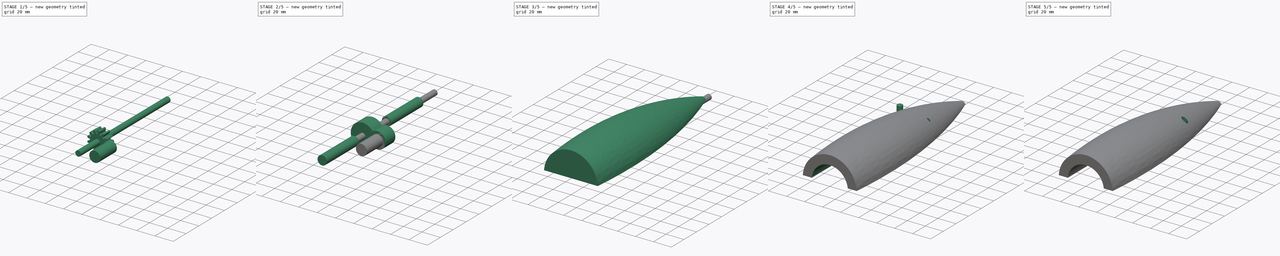
[diagram: build sequence overview — one tinted view per stage of 5, left to right]
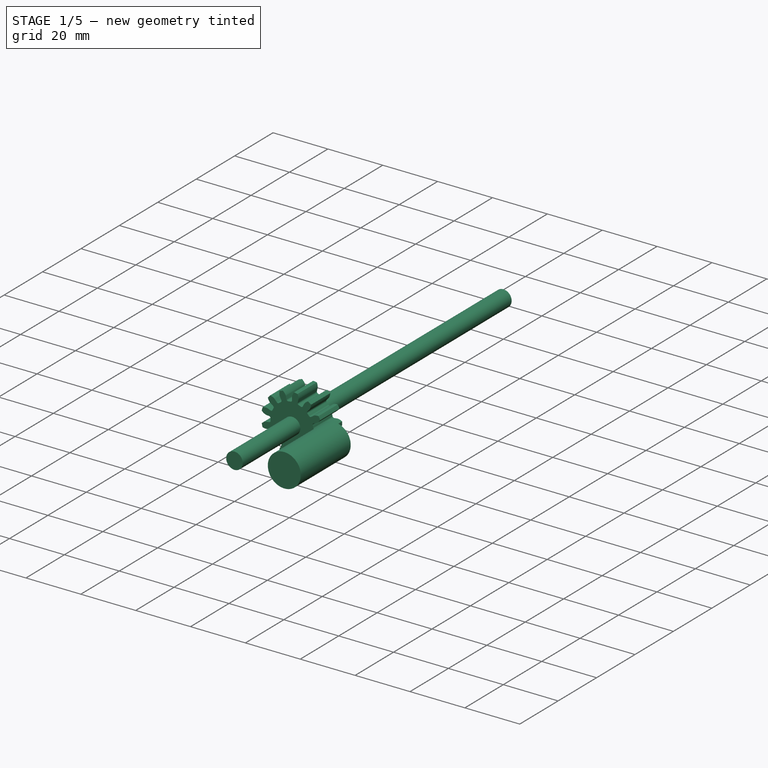
[diagram: stage 1 of 5 — iso view after this stage's code; geometry added in this stage tinted green]
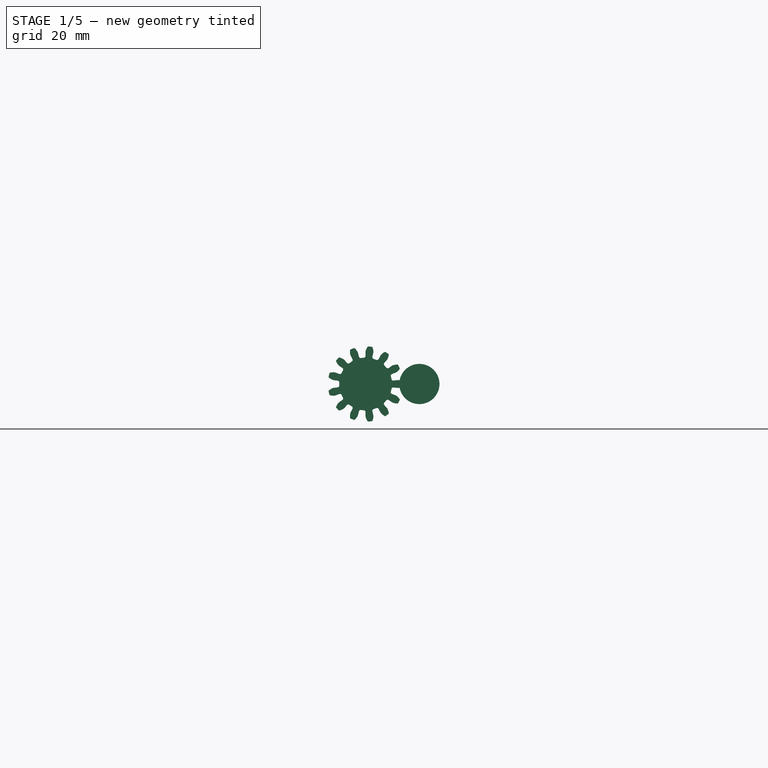
[diagram: stage 1 of 5 — front view after this stage's code; geometry added in this stage tinted green]
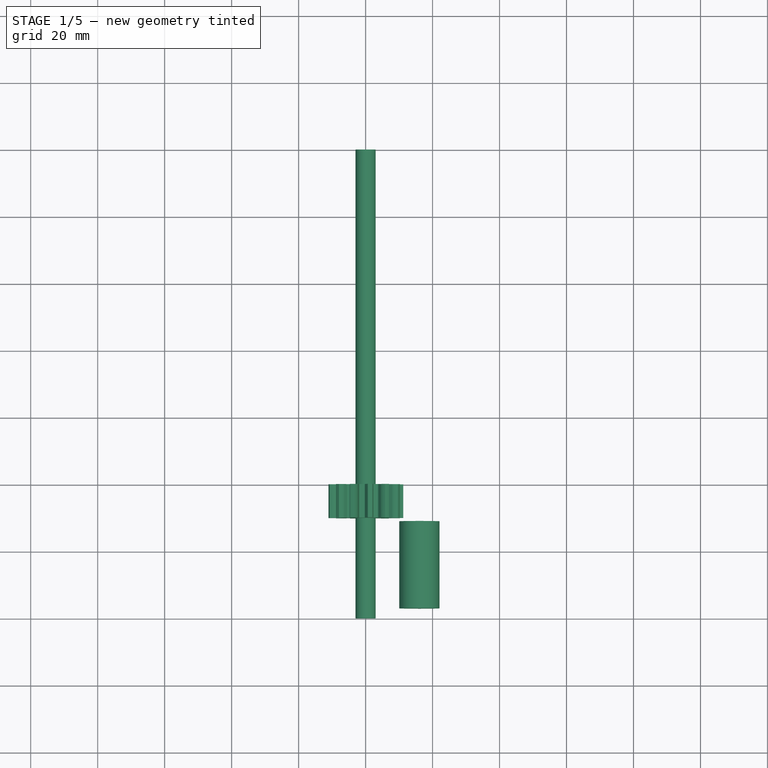
[diagram: stage 1 of 5 — top view after this stage's code; geometry added in this stage tinted green]
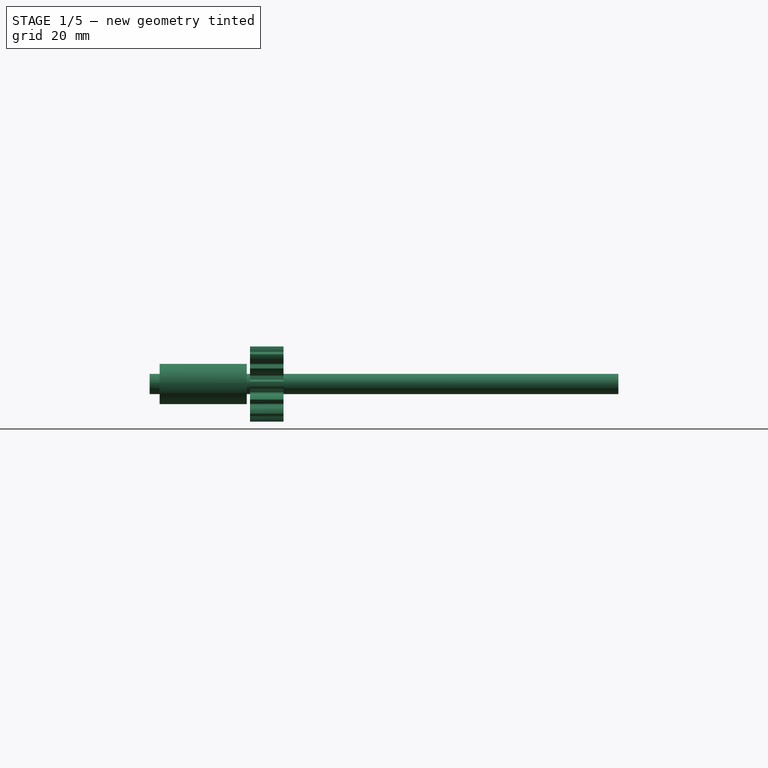
[diagram: stage 1 of 5 — right view after this stage's code; geometry added in this stage tinted green]
FCSTD DOCUMENT  (FreeCAD 0.16R6705 (Git))
Label: solo_tappo
License: All rights reserved
LicenseURL: http://it.wikipedia.org/wiki/<copyright redacted>
objects: Sketcher::SketchObject×13, PartDesign::Pad×10, Part::Cut×6, Part::MultiCommon×3, Part::MultiFuse×2, Part::Fuse×2, PartDesign::Mirrored×2, Part::Loft×1, Part::Part2DObjectPython×1, Part::Box×1, PartDesign::Pocket×1
note: 53 computed .brp shape members not serialized (recipe doc carries the construction recipe); baked Part::Feature solids carry a one-line shape summary decoded from their .brp

FEATURE [Part::Part2DObjectPython] InvoluteGear  # Draft 2D object (typed FeaturePython)
  ExternalGear = true
  HighPrecision = true
  Modules = 1.5
  NumberOfTeeth = 13
  PressureAngle = 10
FEATURE [PartDesign::Pad] Pad
  Length = 10
  Length2 = 100
  Sketch = -> InvoluteGear
  Type = 0
FEATURE [Sketcher::SketchObject] Sketch006
  Placement = pos=(0,0,0) rot=(1,0,0;3.14159rad)
  sketch-geometry (1):
    g0: Circle CenterX=0 CenterY=0 CenterZ=0 NormalX=0 NormalY=0 NormalZ=1 Radius=3.00999
FEATURE [PartDesign::Pad] Pad002
  Length = 200
  Length2 = 200
  Midplane = true
  Placement = pos=(0,0,0) rot=(1,0,0;3.14159rad)
  Sketch = -> Sketch006
  Type = 0
FEATURE [Part::MultiFuse] Fusion  label="ingranaggio"
  Placement = pos=(0,0,0) rot=(1,0,0;1.5708rad)
  Shapes = -> [Pad002,Pad]
FEATURE [Sketcher::SketchObject] Sketch013
  Placement = pos=(0,-11,0) rot=(1,0,0;1.5708rad)
  sketch-geometry (1):
    g0: Circle CenterX=16.0596 CenterY=9e-06 CenterZ=0 NormalX=0 NormalY=0 NormalZ=1 Radius=6
  constraints (1):
    c: Radius(g0) = 6
FEATURE [PartDesign::Pad] Pad008  label="scasso_motore"
  Length = 26
  Length2 = 100
  Placement = pos=(0,-11,0) rot=(1,0,0;1.5708rad)
  Sketch = -> Sketch013
  Type = 0
FEATURE [Sketcher::SketchObject] Sketch014
  Placement = pos=(0,-40,0) rot=(1,0,0;1.5708rad)
  sketch-geometry (1):
    g0: Circle CenterX=0 CenterY=0 CenterZ=0 NormalX=0 NormalY=0 NormalZ=1 Radius=20.0437
FEATURE [PartDesign::Pad] Pad009  label="buco"
  Length = 100
  Length2 = 100
  Placement = pos=(0,-40,0) rot=(1,0,0;1.5708rad)
  Sketch = -> Sketch014
  Type = 0
FEATURE [Part::Cut] Cut005  label="ingranaggio_senza_buco"
  Base = -> Fusion
  Tool = -> Pad009
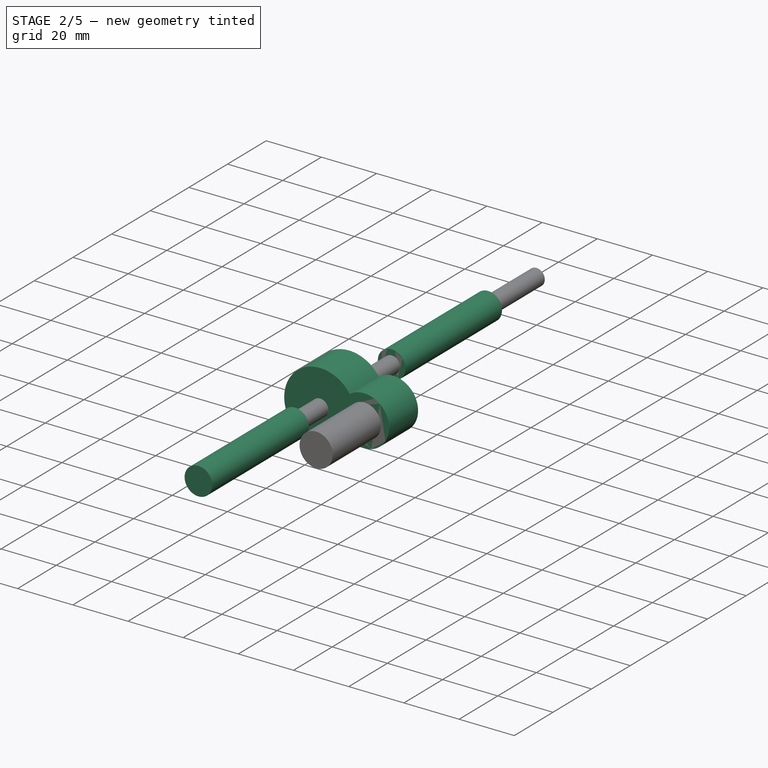
[diagram: stage 2 of 5 — iso view after this stage's code; geometry added in this stage tinted green]
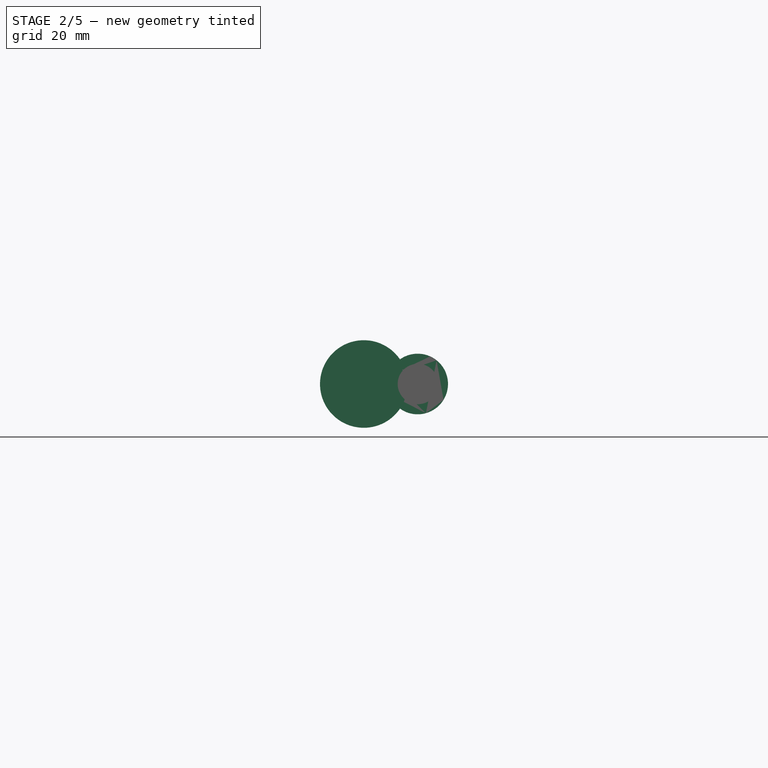
[diagram: stage 2 of 5 — front view after this stage's code; geometry added in this stage tinted green]
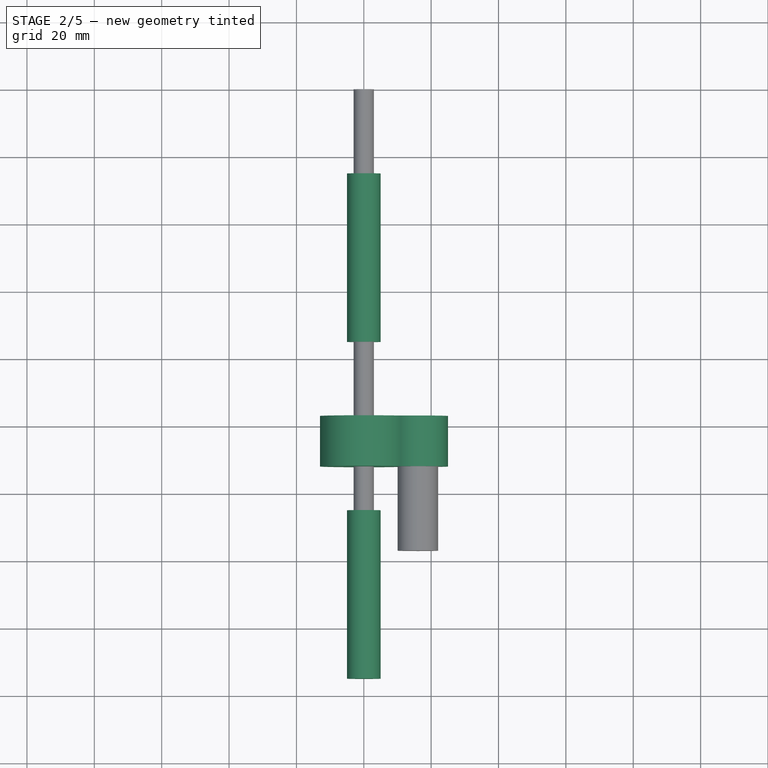
[diagram: stage 2 of 5 — top view after this stage's code; geometry added in this stage tinted green]
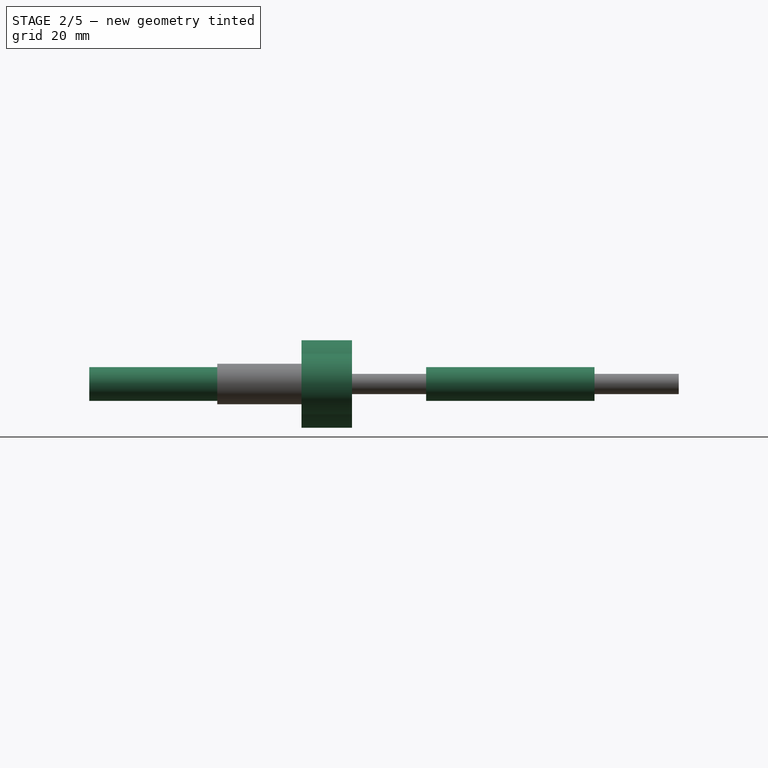
[diagram: stage 2 of 5 — right view after this stage's code; geometry added in this stage tinted green]
FEATURE [Sketcher::SketchObject] Sketch008
  Placement = pos=(0,3,0) rot=(1,0,0;1.5708rad)
  sketch-geometry (1):
    g0: Circle CenterX=0 CenterY=0 CenterZ=0 NormalX=0 NormalY=0 NormalZ=1 Radius=13
  constraints (1):
    c: Radius(g0) = 13
FEATURE [PartDesign::Pad] Pad004  label="scasso_ruota_dentata"
  Length = 15
  Length2 = 100
  Placement = pos=(0,3,0) rot=(1,0,0;1.5708rad)
  Sketch = -> Sketch008
  Type = 0
FEATURE [Sketcher::SketchObject] Sketch009
  Placement = pos=(0,3,0) rot=(1,0,0;1.5708rad)
  sketch-geometry (1):
    g0: Circle CenterX=15.9971 CenterY=9e-06 CenterZ=0 NormalX=0 NormalY=0 NormalZ=1 Radius=9
  constraints (1):
    c: Radius(g0) = 9
FEATURE [PartDesign::Pad] Pad005  label="scasso_ruota_dentata_motore"
  Length = 15
  Length2 = 100
  Placement = pos=(0,3,0) rot=(1,0,0;1.5708rad)
  Sketch = -> Sketch009
  Type = 0
FEATURE [Sketcher::SketchObject] Sketch010
  Placement = pos=(0,-25,0) rot=(1,0,0;1.5708rad)
  sketch-geometry (1):
    g0: Circle CenterX=0 CenterY=0 CenterZ=0 NormalX=0 NormalY=0 NormalZ=1 Radius=5
  constraints (1):
    c: Radius(g0) = 5
FEATURE [PartDesign::Pad] Pad006
  Length = 50
  Length2 = 100
  Placement = pos=(0,-25,0) rot=(1,0,0;1.5708rad)
  Sketch = -> Sketch010
  Type = 0
FEATURE [Sketcher::SketchObject] Sketch011
  Placement = pos=(0,75,0) rot=(1,0,0;1.5708rad)
  sketch-geometry (1):
    g0: Circle CenterX=0 CenterY=0 CenterZ=0 NormalX=0 NormalY=0 NormalZ=1 Radius=5
  constraints (1):
    c: Radius(g0) = 5
FEATURE [PartDesign::Pad] Pad007
  Length = 50
  Length2 = 100
  Placement = pos=(0,75,0) rot=(1,0,0;1.5708rad)
  Sketch = -> Sketch011
  Type = 0
FEATURE [Part::Fuse] Fusion002  label="scassi_perno"
  Base = -> Pad006
  Tool = -> Pad007
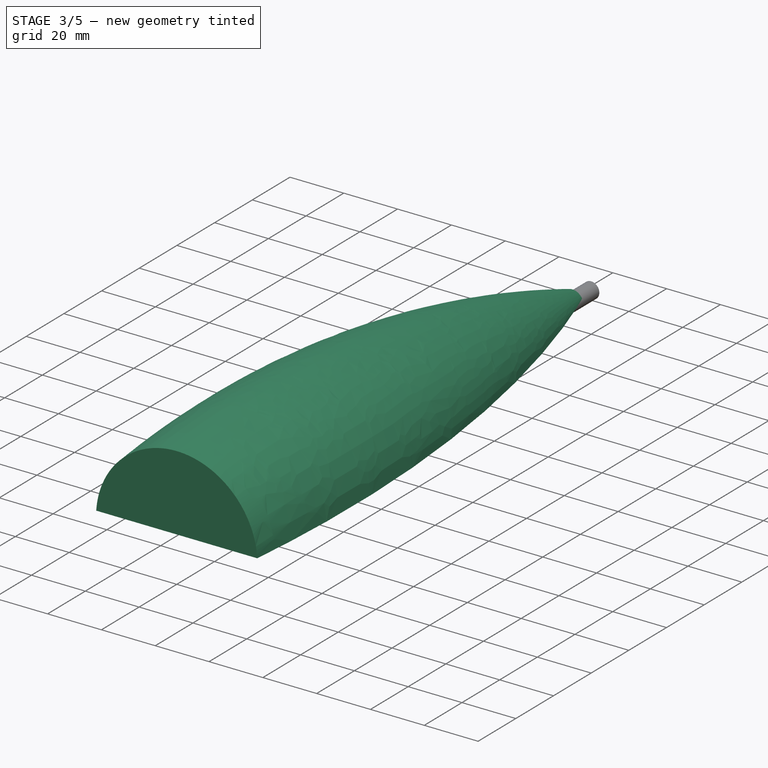
[diagram: stage 3 of 5 — iso view after this stage's code; geometry added in this stage tinted green]
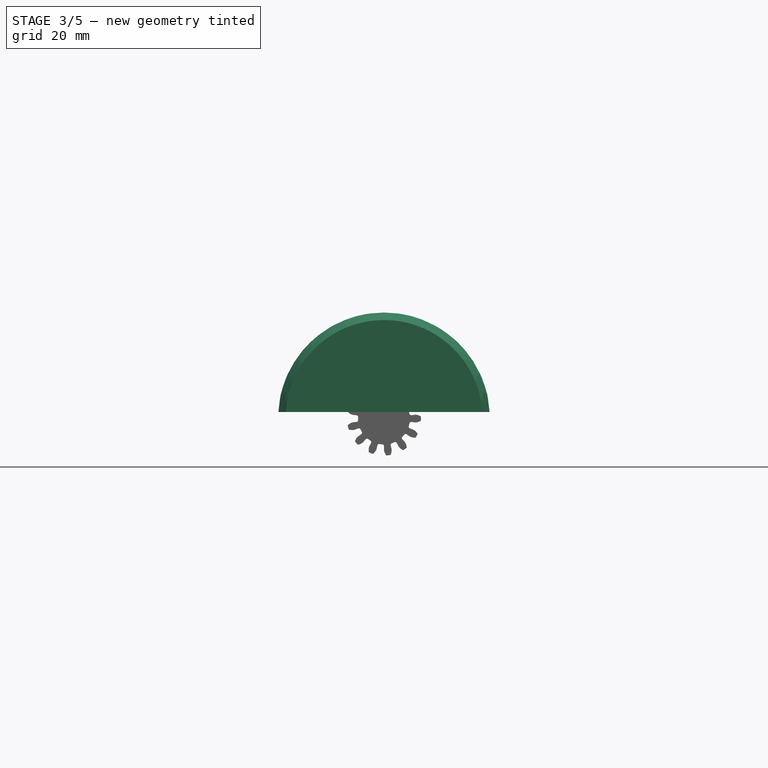
[diagram: stage 3 of 5 — front view after this stage's code; geometry added in this stage tinted green]
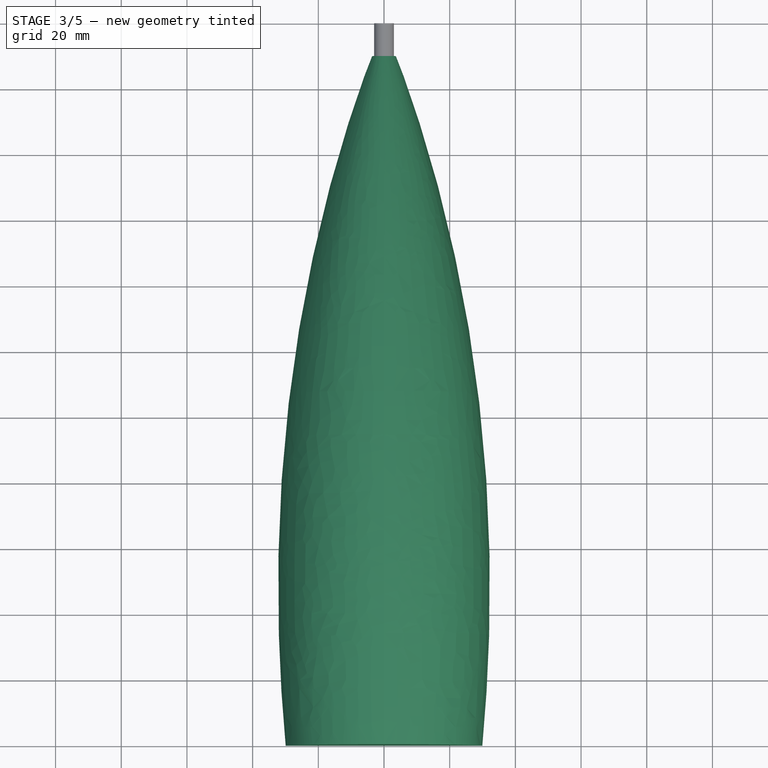
[diagram: stage 3 of 5 — top view after this stage's code; geometry added in this stage tinted green]
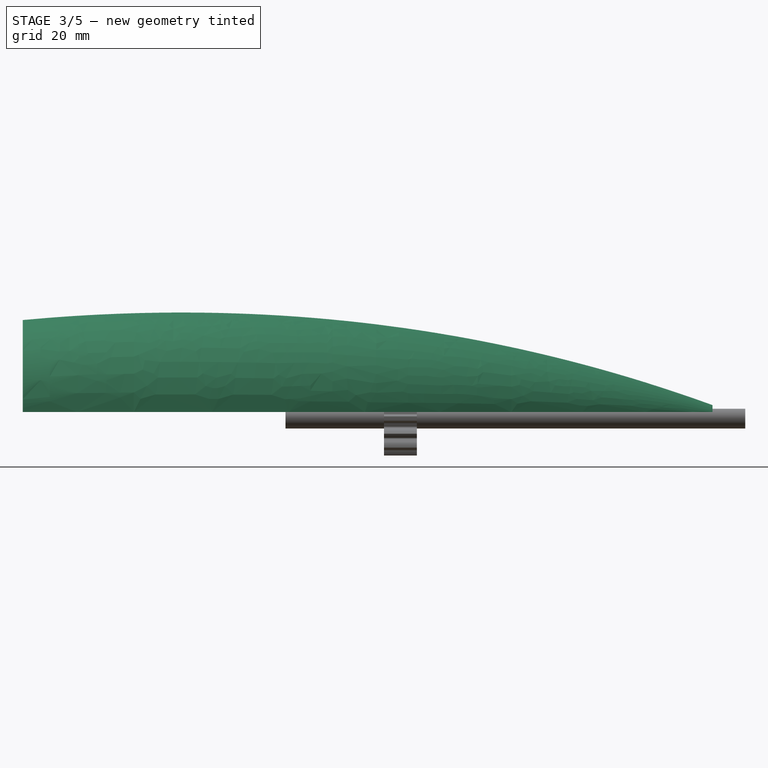
[diagram: stage 3 of 5 — right view after this stage's code; geometry added in this stage tinted green]
FEATURE [Sketcher::SketchObject] Sketch
  Placement = pos=(0,90,0) rot=(1,0,0;1.5708rad)
  sketch-geometry (1):
    g0: Circle CenterX=0 CenterY=0 CenterZ=0 NormalX=0 NormalY=0 NormalZ=1 Radius=4.12022
FEATURE [Sketcher::SketchObject] Sketch001
  Placement = pos=(0,0,0) rot=(1,0,0;1.5708rad)
  sketch-geometry (1):
    g0: Circle CenterX=0 CenterY=0 CenterZ=0 NormalX=0 NormalY=0 NormalZ=1 Radius=27
  constraints (1):
    c: Radius(g0) = 27
FEATURE [Sketcher::SketchObject] Sketch002
  Placement = pos=(0,-120,0) rot=(1,0,0;1.5708rad)
  sketch-geometry (1):
    g0: Circle CenterX=0 CenterY=0 CenterZ=0 NormalX=0 NormalY=0 NormalZ=1 Radius=30
  constraints (1):
    c: Radius(g0) = 30
FEATURE [Part::Loft] Loft  label="esterno"
  Closed = false
  Ruled = false
  Sections = -> [Sketch,Sketch001,Sketch002]
  Solid = true
FEATURE [Part::Box] Box  label="Cubo"
  Height = 100
  Length = 50
  Placement = pos=(50,-140,2) rot=(0,-1,0;1.5708rad)
  Width = 240
FEATURE [Part::MultiCommon] Common  label="tappo"
  Shapes = -> [Loft,Box]
FEATURE [Part::Fuse] Fusion001  label="scassi_ruote_dentate"
  Base = -> Pad005
  Tool = -> Pad004
FEATURE [Part::MultiFuse] Fusion005  label="scassi_tutti"
  Shapes = -> [Pad008,Fusion002,Fusion001]
FEATURE [Part::Cut] Cut002  label="tappo_con_scassi"
  Base = -> Common
  Tool = -> Fusion005
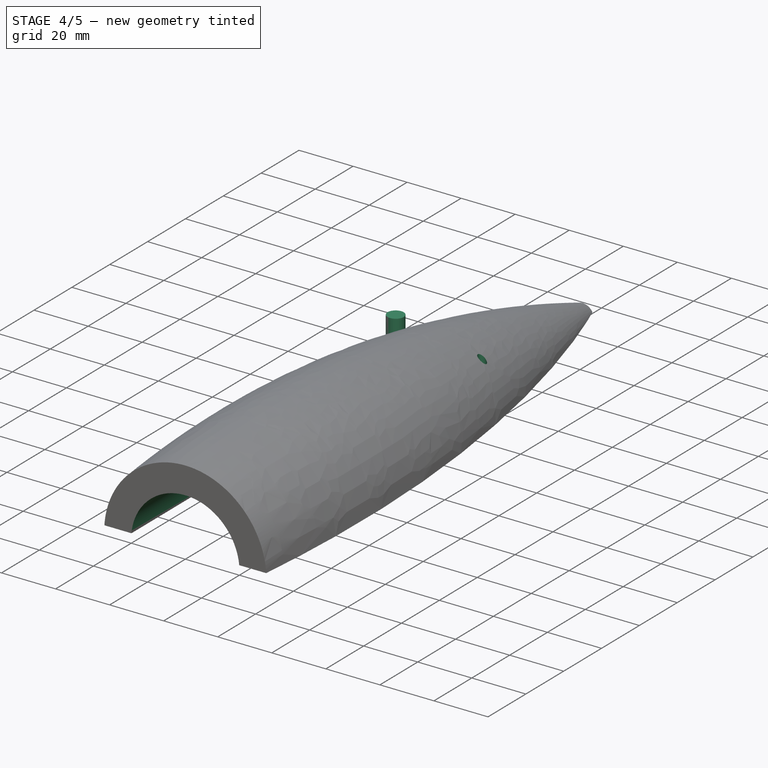
[diagram: stage 4 of 5 — iso view after this stage's code; geometry added in this stage tinted green]
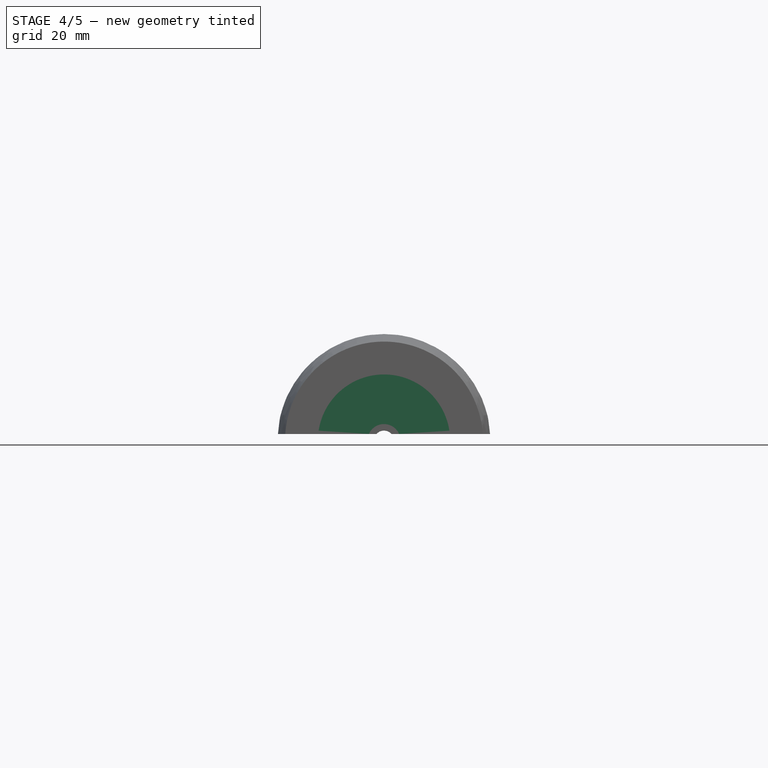
[diagram: stage 4 of 5 — front view after this stage's code; geometry added in this stage tinted green]
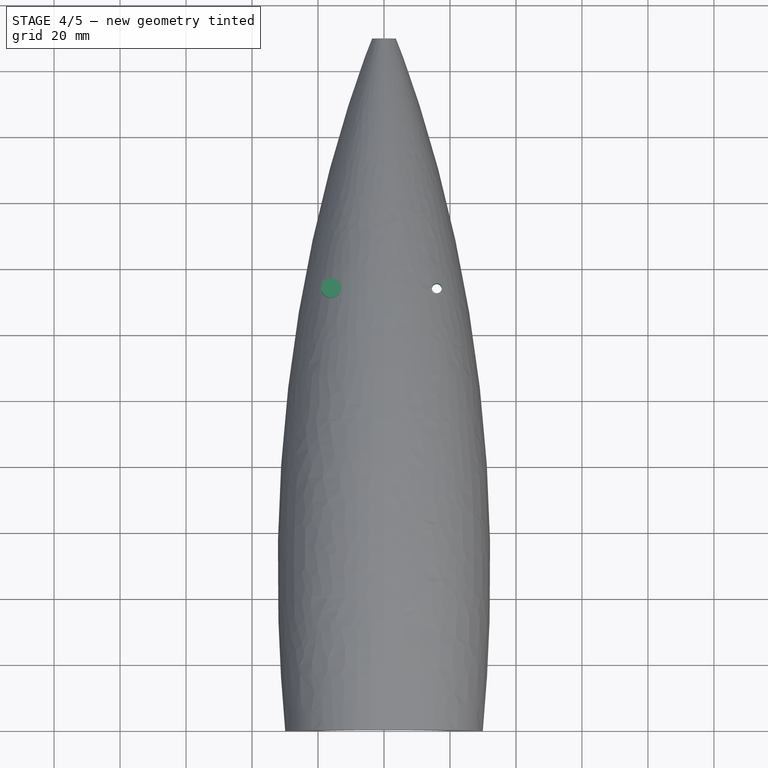
[diagram: stage 4 of 5 — top view after this stage's code; geometry added in this stage tinted green]
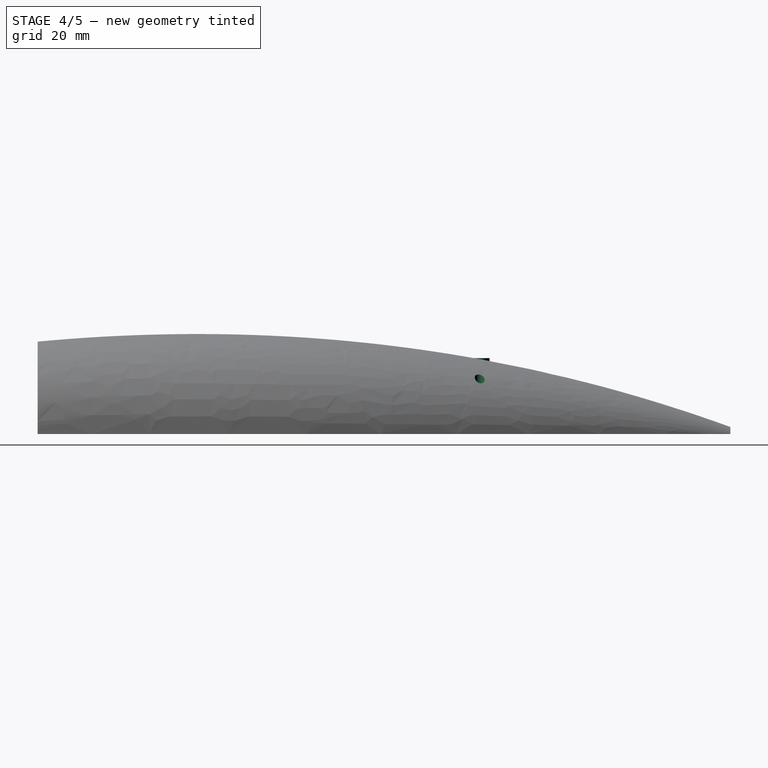
[diagram: stage 4 of 5 — right view after this stage's code; geometry added in this stage tinted green]
FEATURE [Part::Cut] Cut004  label="tappo_con_scassi_con_buco"
  Base = -> Cut002
  Tool = -> Pad009
FEATURE [Part::Cut] Cut007  label="tappo_con_scass_buco_ingranaggi"
  Base = -> Cut004
  Tool = -> Cut005
FEATURE [Sketcher::SketchObject] Sketch018
  Placement = pos=(0,0,5) rot=(0,0,1;0rad)
  sketch-geometry (1):
    g0: Circle CenterX=-16 CenterY=14 CenterZ=0 NormalX=0 NormalY=0 NormalZ=1 Radius=3
  constraints (3):
    c: DistanceY(g-1,g0) = 14
    c: DistanceX(g-1,g0) = -16
    c: Radius(g0) = 3
FEATURE [PartDesign::Pad] Pad012
  Length = 20
  Length2 = 100
  Placement = pos=(0,0,5) rot=(0,0,1;0rad)
  Sketch = -> Sketch018
  Type = 0
FEATURE [PartDesign::Pocket] Pocket
  Length = 5
  Sketch = -> Sketch016
  Type = 1
FEATURE [PartDesign::Mirrored] Mirrored  label="solo_tappo_completo_buchi_viti"
  MirrorPlane = -> Sketch016 [V_Axis]
  Originals = -> [Pocket]
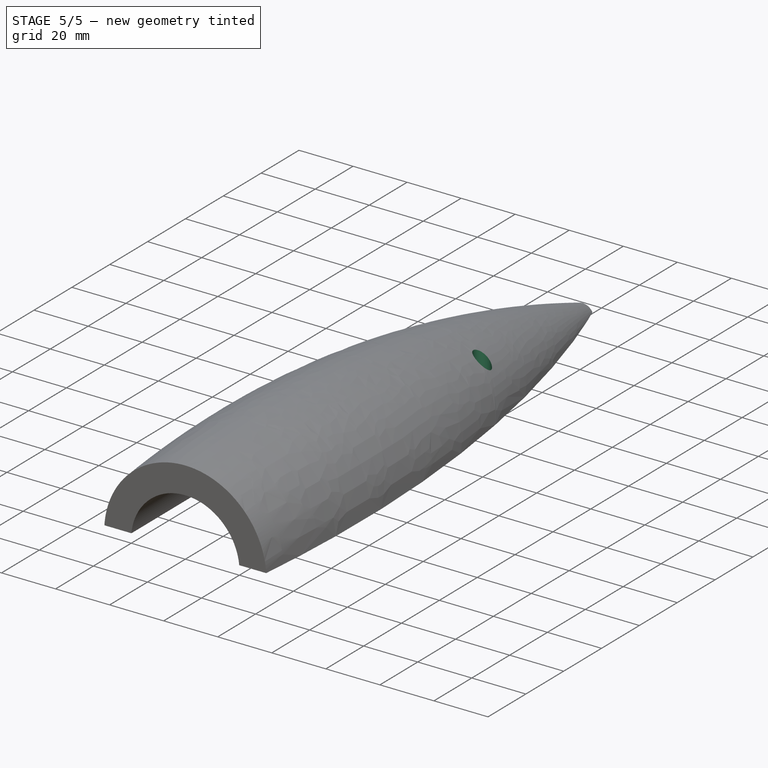
[diagram: stage 5 of 5 — iso view after this stage's code; geometry added in this stage tinted green]
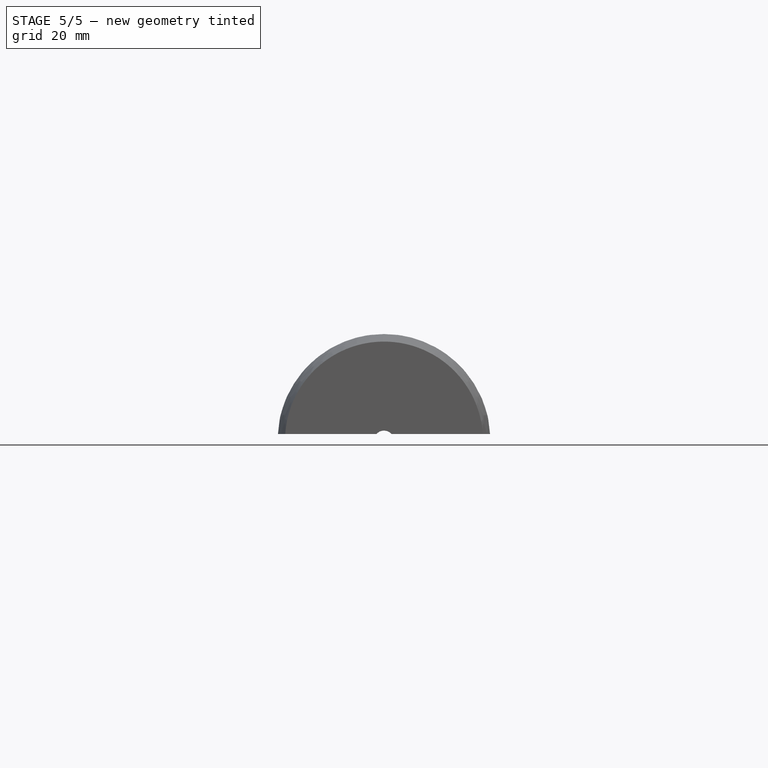
[diagram: stage 5 of 5 — front view after this stage's code; geometry added in this stage tinted green]
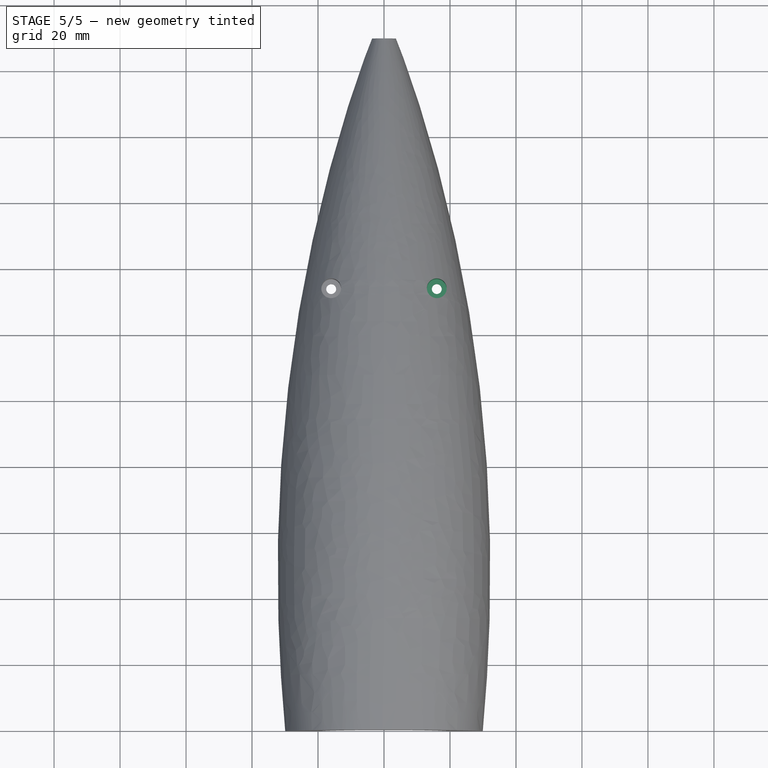
[diagram: stage 5 of 5 — top view after this stage's code; geometry added in this stage tinted green]
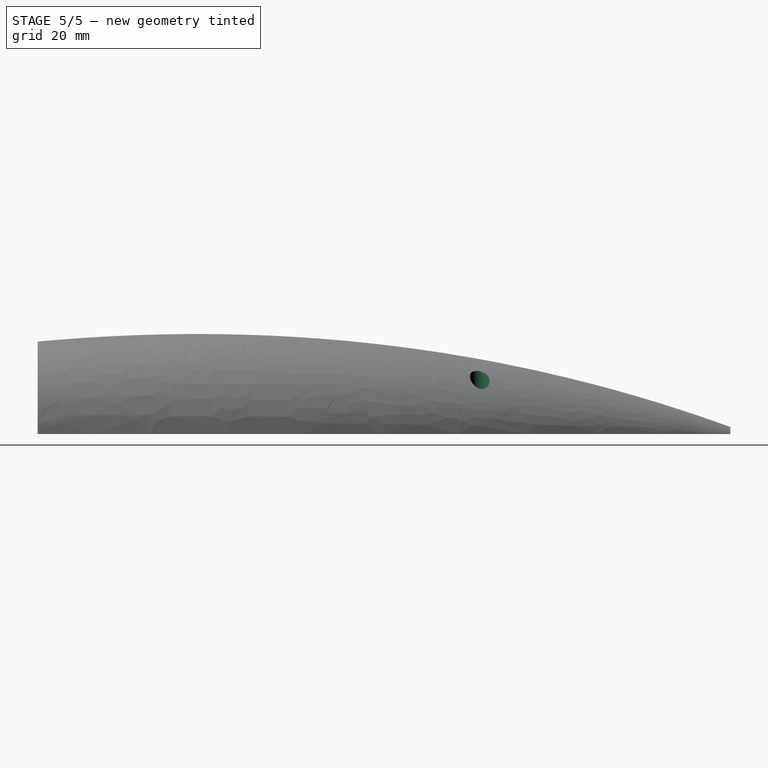
[diagram: stage 5 of 5 — right view after this stage's code; geometry added in this stage tinted green]
FEATURE [Sketcher::SketchObject] Sketch016
  Placement = pos=(0,0,2) rot=(1,0,0;3.14159rad)
  Support = -> Cut007 [Face4]
  sketch-geometry (1):
    g0: Circle CenterX=16 CenterY=-14 CenterZ=0 NormalX=0 NormalY=0 NormalZ=1 Radius=1.5
  constraints (3):
    c: DistanceY(g0,g-1) = 14
    c: DistanceX(g-1,g0) = 16
    c: Radius(g0) = 1.5
FEATURE [PartDesign::Mirrored] Mirrored001
  MirrorPlane = -> Sketch016 [V_Axis]
FEATURE [Sketcher::SketchObject] Sketch017
  Placement = pos=(0,0,5) rot=(0,0,1;0rad)
  sketch-geometry (1):
    g0: Circle CenterX=16 CenterY=14 CenterZ=0 NormalX=0 NormalY=0 NormalZ=1 Radius=3
  constraints (3):
    c: DistanceY(g-1,g0) = 14
    c: DistanceX(g-1,g0) = 16
    c: Radius(g0) = 3
FEATURE [PartDesign::Pad] Pad011
  Length = 20
  Length2 = 100
  Placement = pos=(0,0,5) rot=(0,0,1;0rad)
  Sketch = -> Sketch017
  Type = 0
FEATURE [Part::Cut] Cut009
  Base = -> Mirrored001
  Tool = -> Pad011
FEATURE [Part::Cut] Cut010
  Base = -> Mirrored001
  Tool = -> Pad012
FEATURE [Part::MultiCommon] Common001  label="tappo_completo_buchi_viti"
  Shapes = -> [Cut009,Cut010]
FEATURE [Part::MultiCommon] Common002  label="tappo_completo_buchi_viti001"
  Shapes = -> [Mirrored,Common001]
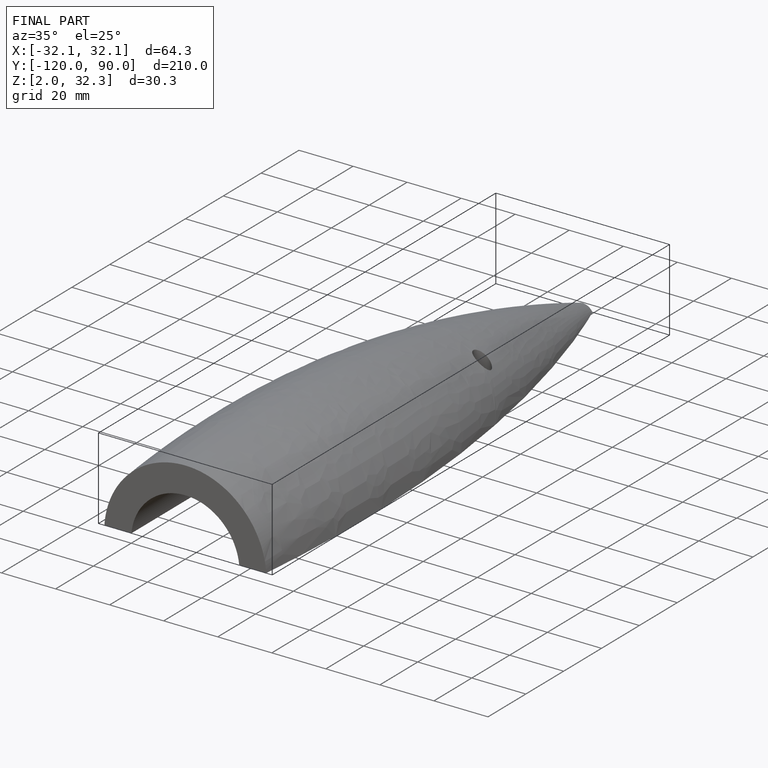
[diagram: finished part — iso view with bounding-box wireframe]
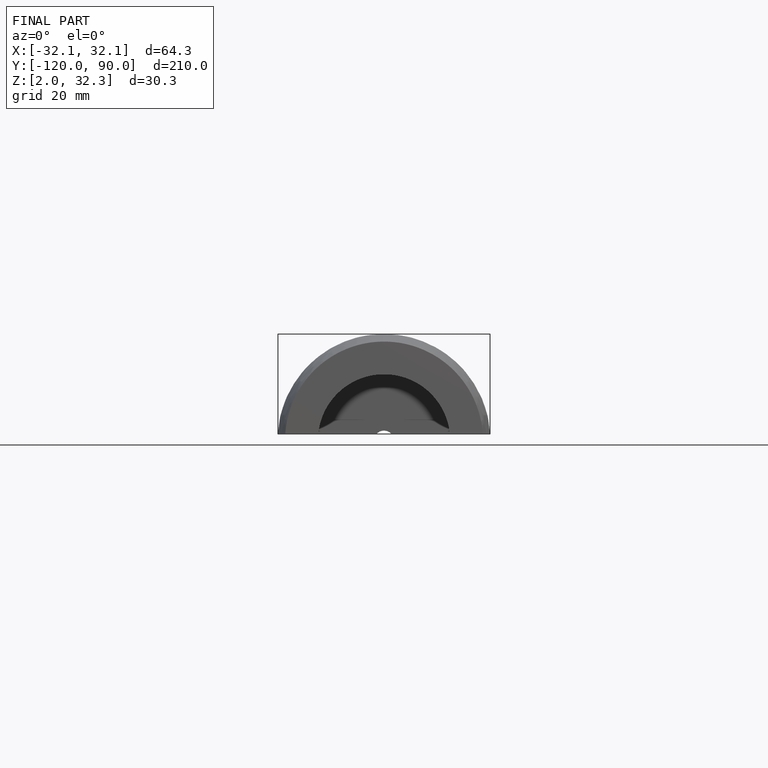
[diagram: finished part — front view with bounding-box wireframe]
